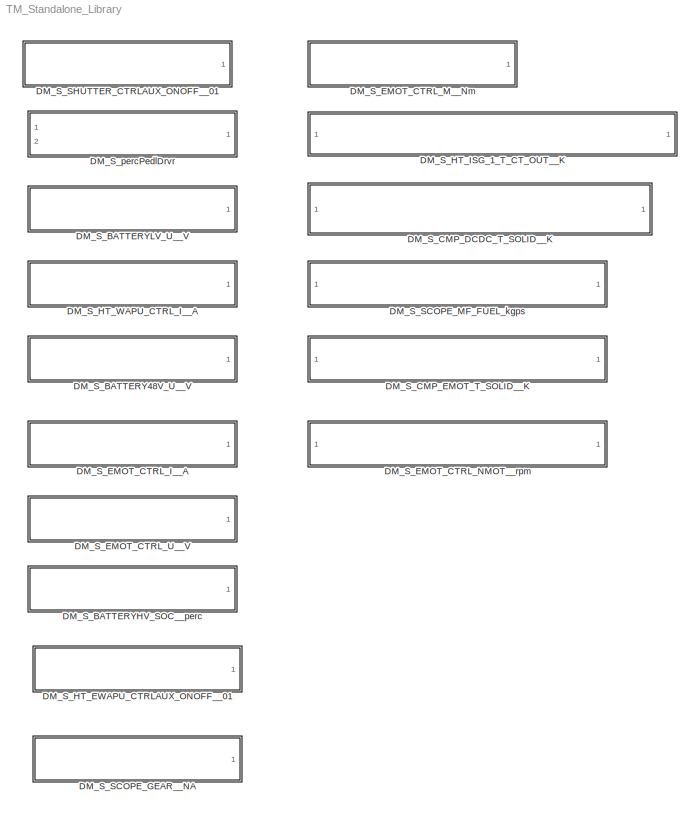
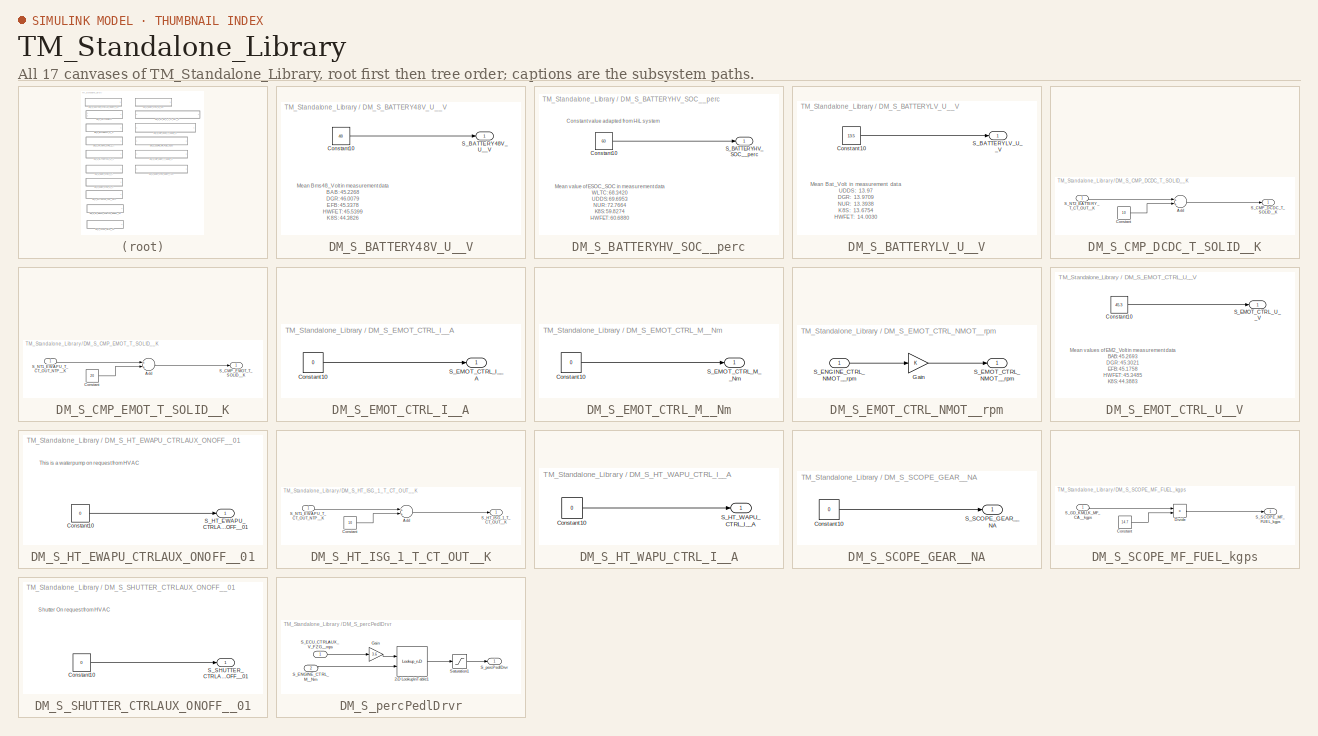
[diagram: thumbnail index - all 17 canvases of the model, root first then tree order]
MODEL TM_Standalone_Library
KIND library
BLOCK [SubSystem] DM_S_BATTERY48V_U__V
  FunctionWithSeparateData = off
  MaskHideContents = off
  MinAlgLoopOccurrences = off
  Opaque = off
  Ports = [0, 1]
  PropExecContextOutsideSubsystem = off
  RTWSystemCode = Auto
  RequestExecContextInheritance = off
  SID = 137
BLOCK [Constant] DM_S_BATTERY48V_U__V/Constant10
  SID = 138
  Value = 48
BLOCK [Outport] DM_S_BATTERY48V_U__V/S_BATTERY48V_U__V
  IconDisplay = Port number
  SID = 139
BLOCK [SubSystem] DM_S_BATTERYHV_SOC__perc
  FunctionWithSeparateData = off
  MaskHideContents = off
  MinAlgLoopOccurrences = off
  Opaque = off
  Ports = [0, 1]
  PropExecContextOutsideSubsystem = off
  RTWSystemCode = Auto
  RequestExecContextInheritance = off
  SID = 140
BLOCK [Constant] DM_S_BATTERYHV_SOC__perc/Constant10
  SID = 141
  Value = 60
BLOCK [Outport] DM_S_BATTERYHV_SOC__perc/S_BATTERYHV_SOC__perc
  IconDisplay = Port number
  SID = 142
BLOCK [SubSystem] DM_S_BATTERYLV_U__V
  FunctionWithSeparateData = off
  MaskHideContents = off
  MinAlgLoopOccurrences = off
  Opaque = off
  Ports = [0, 1]
  PropExecContextOutsideSubsystem = off
  RTWSystemCode = Auto
  RequestExecContextInheritance = off
  SID = 143
BLOCK [Constant] DM_S_BATTERYLV_U__V/Constant10
  SID = 144
  Value = 13.5
BLOCK [Outport] DM_S_BATTERYLV_U__V/S_BATTERYLV_U__V
  IconDisplay = Port number
  SID = 145
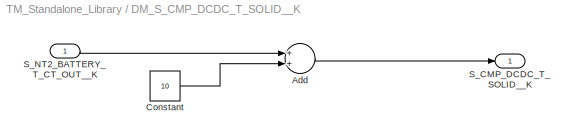
BLOCK [SubSystem] DM_S_CMP_DCDC_T_SOLID__K
  FunctionWithSeparateData = off
  MaskHideContents = off
  MinAlgLoopOccurrences = off
  Opaque = off
  Ports = [1, 1]
  PropExecContextOutsideSubsystem = off
  RTWSystemCode = Auto
  RequestExecContextInheritance = off
  SID = 195
BLOCK [Sum] DM_S_CMP_DCDC_T_SOLID__K/Add
  InputSameDT = off
  OutDataTypeStr = Inherit: Inherit via internal rule
  Ports = [2, 1]
  SID = 197
  SaturateOnIntegerOverflow = off
BLOCK [Constant] DM_S_CMP_DCDC_T_SOLID__K/Constant
  SID = 198
  Value = 10
BLOCK [Outport] DM_S_CMP_DCDC_T_SOLID__K/S_CMP_DCDC_T_SOLID__K
  IconDisplay = Port number
  SID = 199
BLOCK [Inport] DM_S_CMP_DCDC_T_SOLID__K/S_NT2_BATTERY_T_CT_OUT__K
  IconDisplay = Port number
  SID = 196
BLOCK [SubSystem] DM_S_CMP_EMOT_T_SOLID__K
  FunctionWithSeparateData = off
  MaskHideContents = off
  MinAlgLoopOccurrences = off
  Opaque = off
  Ports = [1, 1]
  PropExecContextOutsideSubsystem = off
  RTWSystemCode = Auto
  RequestExecContextInheritance = off
  SID = 200
BLOCK [Sum] DM_S_CMP_EMOT_T_SOLID__K/Add
  InputSameDT = off
  OutDataTypeStr = Inherit: Inherit via internal rule
  Ports = [2, 1]
  SID = 202
  SaturateOnIntegerOverflow = off
BLOCK [Constant] DM_S_CMP_EMOT_T_SOLID__K/Constant
  SID = 203
  Value = 20
BLOCK [Outport] DM_S_CMP_EMOT_T_SOLID__K/S_CMP_EMOT_T_SOLID__K
  IconDisplay = Port number
  SID = 204
BLOCK [Inport] DM_S_CMP_EMOT_T_SOLID__K/S_NT1_EWAPU_T_CT_OUT_NTP__K
  IconDisplay = Port number
  SID = 201
BLOCK [SubSystem] DM_S_EMOT_CTRL_I__A
  FunctionWithSeparateData = off
  MaskHideContents = off
  MinAlgLoopOccurrences = off
  Opaque = off
  Ports = [0, 1]
  PropExecContextOutsideSubsystem = off
  RTWSystemCode = Auto
  RequestExecContextInheritance = off
  SID = 146
BLOCK [Constant] DM_S_EMOT_CTRL_I__A/Constant10
  SID = 147
  Value = 0
BLOCK [Outport] DM_S_EMOT_CTRL_I__A/S_EMOT_CTRL_I__A
  IconDisplay = Port number
  SID = 148
BLOCK [SubSystem] DM_S_EMOT_CTRL_M__Nm
  FunctionWithSeparateData = off
  MaskHideContents = off
  MinAlgLoopOccurrences = off
  Opaque = off
  Ports = [0, 1]
  PropExecContextOutsideSubsystem = off
  RTWSystemCode = Auto
  RequestExecContextInheritance = off
  SID = 149
BLOCK [Constant] DM_S_EMOT_CTRL_M__Nm/Constant10
  SID = 150
  Value = 0
BLOCK [Outport] DM_S_EMOT_CTRL_M__Nm/S_EMOT_CTRL_M__Nm
  IconDisplay = Port number
  SID = 151
BLOCK [SubSystem] DM_S_EMOT_CTRL_NMOT__rpm
  FunctionWithSeparateData = off
  MaskHideContents = off
  MinAlgLoopOccurrences = off
  Opaque = off
  Ports = [1, 1]
  PropExecContextOutsideSubsystem = off
  RTWSystemCode = Auto
  RequestExecContextInheritance = off
  SID = 205
BLOCK [Gain] DM_S_EMOT_CTRL_NMOT__rpm/Gain
  OutDataTypeStr = Inherit: Inherit via internal rule
  ParamDataTypeStr = Inherit: Inherit via internal rule
  SID = 207
  SaturateOnIntegerOverflow = off
BLOCK [Outport] DM_S_EMOT_CTRL_NMOT__rpm/S_EMOT_CTRL_NMOT__rpm
  IconDisplay = Port number
  SID = 208
BLOCK [Inport] DM_S_EMOT_CTRL_NMOT__rpm/S_ENGINE_CTRL_NMOT__rpm
  IconDisplay = Port number
  SID = 206
BLOCK [SubSystem] DM_S_EMOT_CTRL_U__V
  FunctionWithSeparateData = off
  MaskHideContents = off
  MinAlgLoopOccurrences = off
  Opaque = off
  Ports = [0, 1]
  PropExecContextOutsideSubsystem = off
  RTWSystemCode = Auto
  RequestExecContextInheritance = off
  SID = 152
BLOCK [Constant] DM_S_EMOT_CTRL_U__V/Constant10
  SID = 153
  Value = 45.3
BLOCK [Outport] DM_S_EMOT_CTRL_U__V/S_EMOT_CTRL_U__V
  IconDisplay = Port number
  SID = 154
BLOCK [SubSystem] DM_S_HT_EWAPU_CTRLAUX_ONOFF__01
  FunctionWithSeparateData = off
  MaskHideContents = off
  MinAlgLoopOccurrences = off
  Opaque = off
  Ports = [0, 1]
  PropExecContextOutsideSubsystem = off
  RTWSystemCode = Auto
  RequestExecContextInheritance = off
  SID = 155
BLOCK [Constant] DM_S_HT_EWAPU_CTRLAUX_ONOFF__01/Constant10
  SID = 156
  Value = 0
BLOCK [Outport] DM_S_HT_EWAPU_CTRLAUX_ONOFF__01/S_HT_EWAPU_CTRLAUX_ONOFF__01
  IconDisplay = Port number
  SID = 157
BLOCK [SubSystem] DM_S_HT_ISG_1_T_CT_OUT__K
  FunctionWithSeparateData = off
  MaskHideContents = off
  MinAlgLoopOccurrences = off
  Opaque = off
  Ports = [1, 1]
  PropExecContextOutsideSubsystem = off
  RTWSystemCode = Auto
  RequestExecContextInheritance = off
  SID = 178
BLOCK [Sum] DM_S_HT_ISG_1_T_CT_OUT__K/Add
  InputSameDT = off
  OutDataTypeStr = Inherit: Inherit via internal rule
  Ports = [2, 1]
  SID = 180
  SaturateOnIntegerOverflow = off
BLOCK [Constant] DM_S_HT_ISG_1_T_CT_OUT__K/Constant
  SID = 181
  Value = 10
BLOCK [Outport] DM_S_HT_ISG_1_T_CT_OUT__K/S_HT_ISG_1_T_CT_OUT__K
  IconDisplay = Port number
  SID = 182
BLOCK [Inport] DM_S_HT_ISG_1_T_CT_OUT__K/S_NT1_EWAPU_T_CT_OUT_NTP__K
  IconDisplay = Port number
  SID = 179
BLOCK [SubSystem] DM_S_HT_WAPU_CTRL_I__A
  FunctionWithSeparateData = off
  MaskHideContents = off
  MinAlgLoopOccurrences = off
  Opaque = off
  Ports = [0, 1]
  PropExecContextOutsideSubsystem = off
  RTWSystemCode = Auto
  RequestExecContextInheritance = off
  SID = 158
BLOCK [Constant] DM_S_HT_WAPU_CTRL_I__A/Constant10
  SID = 159
  Value = 0
BLOCK [Outport] DM_S_HT_WAPU_CTRL_I__A/S_HT_WAPU_CTRL_I__A
  IconDisplay = Port number
  SID = 160
BLOCK [SubSystem] DM_S_SCOPE_GEAR__NA
  FunctionWithSeparateData = off
  MaskHideContents = off
  MinAlgLoopOccurrences = off
  Opaque = off
  Ports = [0, 1]
  PropExecContextOutsideSubsystem = off
  RTWSystemCode = Auto
  RequestExecContextInheritance = off
  SID = 161
BLOCK [Constant] DM_S_SCOPE_GEAR__NA/Constant10
  SID = 162
  Value = 0
BLOCK [Outport] DM_S_SCOPE_GEAR__NA/S_SCOPE_GEAR__NA
  IconDisplay = Port number
  SID = 163
BLOCK [SubSystem] DM_S_SCOPE_MF_FUEL_kgps
  FunctionWithSeparateData = off
  MaskHideContents = off
  MinAlgLoopOccurrences = off
  Opaque = off
  Ports = [1, 1]
  PropExecContextOutsideSubsystem = off
  RTWSystemCode = Auto
  RequestExecContextInheritance = off
  SID = 209
BLOCK [Constant] DM_S_SCOPE_MF_FUEL_kgps/Constant
  SID = 211
  Value = 14.7
BLOCK [Product] DM_S_SCOPE_MF_FUEL_kgps/Divide
  InputSameDT = off
  Inputs = */
  OutDataTypeStr = Inherit: Inherit via internal rule
  Ports = [2, 1]
  RndMeth = Floor
  SID = 212
  SaturateOnIntegerOverflow = off
BLOCK [Inport] DM_S_SCOPE_MF_FUEL_kgps/S_GD_KMLLK_MF_CA__kgps
  IconDisplay = Port number
  SID = 210
BLOCK [Outport] DM_S_SCOPE_MF_FUEL_kgps/S_SCOPE_MF_FUEL_kgps
  IconDisplay = Port number
  SID = 213
BLOCK [SubSystem] DM_S_SHUTTER_CTRLAUX_ONOFF__01
  FunctionWithSeparateData = off
  MaskHideContents = off
  MinAlgLoopOccurrences = off
  Opaque = off
  Ports = [0, 1]
  PropExecContextOutsideSubsystem = off
  RTWSystemCode = Auto
  RequestExecContextInheritance = off
  SID = 164
BLOCK [Constant] DM_S_SHUTTER_CTRLAUX_ONOFF__01/Constant10
  SID = 165
  Value = 0
BLOCK [Outport] DM_S_SHUTTER_CTRLAUX_ONOFF__01/S_SHUTTER_CTRLAUX_ONOFF__01
  IconDisplay = Port number
  SID = 166
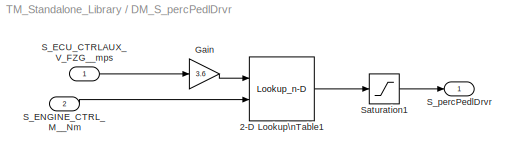
BLOCK [SubSystem] DM_S_percPedlDrvr
  FunctionWithSeparateData = off
  MaskHideContents = off
  MinAlgLoopOccurrences = off
  Opaque = off
  Ports = [2, 1]
  PropExecContextOutsideSubsystem = off
  RTWSystemCode = Auto
  RequestExecContextInheritance = off
  SID = 167
BLOCK [Lookup_n-D] DM_S_percPedlDrvr/2-D Lookup\nTable1
  BreakpointsForDimension1 = [-100:50:600]
  BreakpointsForDimension2 = [0:20:260]'
  IndexSearchMethod = Binary search
  Ports = [2, 1]
  RndMeth = Simplest
  SID = 216
  Table = [0.136532010091195	1.06506062587129	1.44105702629421	0.497003826898518	18.3719280240781	32.0089779306973	-0.0613502373842147	3.26166386833152	-3.28520194826759	6.75863200136261	6.75863200136261	6.75863200136261	6.75863200136261	6.75863200136261\n0.136532010091195	1.06506062587129	1.44105702629421	0.497003826898518	18.3719280240781	32.0089779306973	-0.0613502373842147	3.26166386833152	-3.2852019482...<+3198ch>
BLOCK [Gain] DM_S_percPedlDrvr/Gain
  Gain = 3.6
  OutDataTypeStr = Inherit: Inherit via internal rule
  ParamDataTypeStr = Inherit: Inherit via internal rule
  SID = 219
  SaturateOnIntegerOverflow = off
BLOCK [Inport] DM_S_percPedlDrvr/S_ECU_CTRLAUX_V_FZG__mps
  IconDisplay = Port number
  SID = 214
BLOCK [Inport] DM_S_percPedlDrvr/S_ENGINE_CTRL_M__Nm
  IconDisplay = Port number
  Port = 2
  SID = 215
BLOCK [Outport] DM_S_percPedlDrvr/S_percPedlDrvr
  IconDisplay = Port number
  SID = 169
BLOCK [Saturate] DM_S_percPedlDrvr/Saturation1
  InputPortMap = u0
  LowerLimit = 0
  Ports = [1, 1]
  SID = 217
  UpperLimit = 100
ANNOTATION DM_S_BATTERY48V_U__V: Mean Bms48_Volt in measurement data\nBAB: 45.2268\nDGR: 46.0079\nEFB: 45.3378\nHWFET: 45.5399\nK8S: 44.3826\nNUR: 45.3252\nUDDS: 46.7053\nWLTC: 45.6329
ANNOTATION DM_S_BATTERYHV_SOC__perc: Constant value adapted from HiL system
ANNOTATION DM_S_BATTERYHV_SOC__perc: Mean value of ESOC_SOC in measurement data\nWLTC: 68.3420\nUDDS: 69.6953\nNUR: 72.7664\nK8S: 59.8274\nHWFET: 60.6880\nEFB: 65.1927\nDGR: 60.6096\nBAB: 63.6500
ANNOTATION DM_S_BATTERYLV_U__V: Mean Bat_Volt in measurement data\nUDDS: 13.97\nDGR: 13.9709\nNUR: 13.3938\nK8S: 13.6754\nHWFET: 14.0030\nEFB: 13.5386\nBAB: 13.7105
ANNOTATION DM_S_EMOT_CTRL_U__V: Mean values of EM2_Volt in measurement data\nBAB: 45.2693\nDGR: 45.3021\nEFB: 45.1758\nHWFET: 45.3485\nK8S: 44.3883\nNUR: 45.5211\nUDDS: 46.0209
ANNOTATION DM_S_HT_EWAPU_CTRLAUX_ONOFF__01: This is a waterpump on request from HVAC
ANNOTATION DM_S_SHUTTER_CTRLAUX_ONOFF__01: Shutter On request from HVAC
LINE DM_S_BATTERY48V_U__V/Constant10:1 -> DM_S_BATTERY48V_U__V/S_BATTERY48V_U__V:1
LINE DM_S_BATTERYHV_SOC__perc/Constant10:1 -> DM_S_BATTERYHV_SOC__perc/S_BATTERYHV_SOC__perc:1
LINE DM_S_BATTERYLV_U__V/Constant10:1 -> DM_S_BATTERYLV_U__V/S_BATTERYLV_U__V:1
LINE DM_S_CMP_DCDC_T_SOLID__K/Add:1 -> DM_S_CMP_DCDC_T_SOLID__K/S_CMP_DCDC_T_SOLID__K:1
LINE DM_S_CMP_DCDC_T_SOLID__K/Constant:1 -> DM_S_CMP_DCDC_T_SOLID__K/Add:2
LINE DM_S_CMP_DCDC_T_SOLID__K/S_NT2_BATTERY_T_CT_OUT__K:1 -> DM_S_CMP_DCDC_T_SOLID__K/Add:1
LINE DM_S_CMP_EMOT_T_SOLID__K/Add:1 -> DM_S_CMP_EMOT_T_SOLID__K/S_CMP_EMOT_T_SOLID__K:1
LINE DM_S_CMP_EMOT_T_SOLID__K/Constant:1 -> DM_S_CMP_EMOT_T_SOLID__K/Add:2
LINE DM_S_CMP_EMOT_T_SOLID__K/S_NT1_EWAPU_T_CT_OUT_NTP__K:1 -> DM_S_CMP_EMOT_T_SOLID__K/Add:1
LINE DM_S_EMOT_CTRL_I__A/Constant10:1 -> DM_S_EMOT_CTRL_I__A/S_EMOT_CTRL_I__A:1
LINE DM_S_EMOT_CTRL_M__Nm/Constant10:1 -> DM_S_EMOT_CTRL_M__Nm/S_EMOT_CTRL_M__Nm:1
LINE DM_S_EMOT_CTRL_NMOT__rpm/Gain:1 -> DM_S_EMOT_CTRL_NMOT__rpm/S_EMOT_CTRL_NMOT__rpm:1
LINE DM_S_EMOT_CTRL_NMOT__rpm/S_ENGINE_CTRL_NMOT__rpm:1 -> DM_S_EMOT_CTRL_NMOT__rpm/Gain:1
LINE DM_S_EMOT_CTRL_U__V/Constant10:1 -> DM_S_EMOT_CTRL_U__V/S_EMOT_CTRL_U__V:1
LINE DM_S_HT_EWAPU_CTRLAUX_ONOFF__01/Constant10:1 -> DM_S_HT_EWAPU_CTRLAUX_ONOFF__01/S_HT_EWAPU_CTRLAUX_ONOFF__01:1
LINE DM_S_HT_ISG_1_T_CT_OUT__K/Add:1 -> DM_S_HT_ISG_1_T_CT_OUT__K/S_HT_ISG_1_T_CT_OUT__K:1
LINE DM_S_HT_ISG_1_T_CT_OUT__K/Constant:1 -> DM_S_HT_ISG_1_T_CT_OUT__K/Add:2
LINE DM_S_HT_ISG_1_T_CT_OUT__K/S_NT1_EWAPU_T_CT_OUT_NTP__K:1 -> DM_S_HT_ISG_1_T_CT_OUT__K/Add:1
LINE DM_S_HT_WAPU_CTRL_I__A/Constant10:1 -> DM_S_HT_WAPU_CTRL_I__A/S_HT_WAPU_CTRL_I__A:1
LINE DM_S_SCOPE_GEAR__NA/Constant10:1 -> DM_S_SCOPE_GEAR__NA/S_SCOPE_GEAR__NA:1
LINE DM_S_SCOPE_MF_FUEL_kgps/Constant:1 -> DM_S_SCOPE_MF_FUEL_kgps/Divide:2
LINE DM_S_SCOPE_MF_FUEL_kgps/Divide:1 -> DM_S_SCOPE_MF_FUEL_kgps/S_SCOPE_MF_FUEL_kgps:1
LINE DM_S_SCOPE_MF_FUEL_kgps/S_GD_KMLLK_MF_CA__kgps:1 -> DM_S_SCOPE_MF_FUEL_kgps/Divide:1
LINE DM_S_SHUTTER_CTRLAUX_ONOFF__01/Constant10:1 -> DM_S_SHUTTER_CTRLAUX_ONOFF__01/S_SHUTTER_CTRLAUX_ONOFF__01:1
LINE DM_S_percPedlDrvr/2-D Lookup\nTable1:1 -> DM_S_percPedlDrvr/Saturation1:1
LINE DM_S_percPedlDrvr/Gain:1 -> DM_S_percPedlDrvr/2-D Lookup\nTable1:1
LINE DM_S_percPedlDrvr/S_ECU_CTRLAUX_V_FZG__mps:1 -> DM_S_percPedlDrvr/Gain:1
LINE DM_S_percPedlDrvr/S_ENGINE_CTRL_M__Nm:1 -> DM_S_percPedlDrvr/2-D Lookup\nTable1:2
LINE DM_S_percPedlDrvr/Saturation1:1 -> DM_S_percPedlDrvr/S_percPedlDrvr:1
